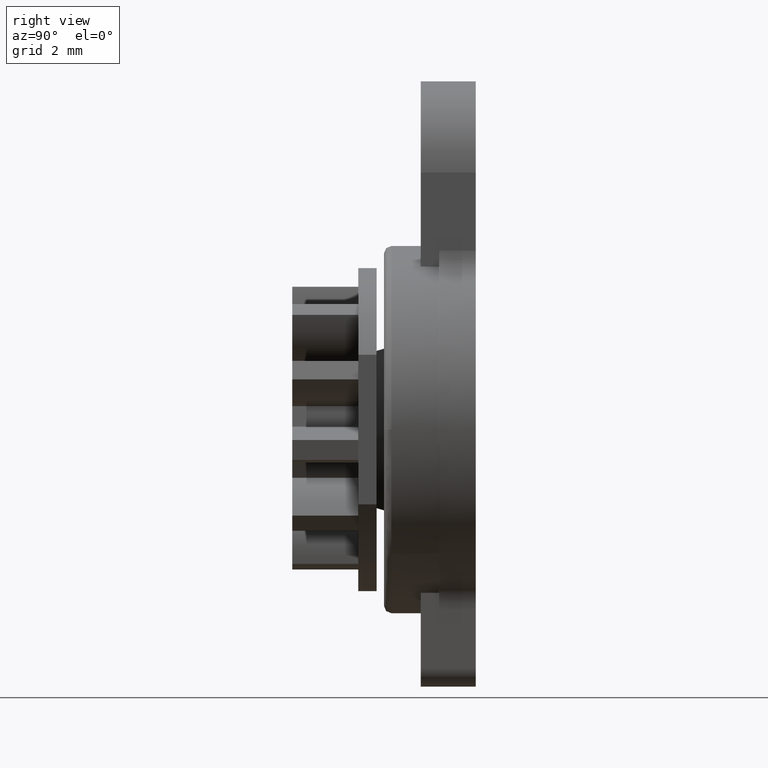
[diagram: clean part render]
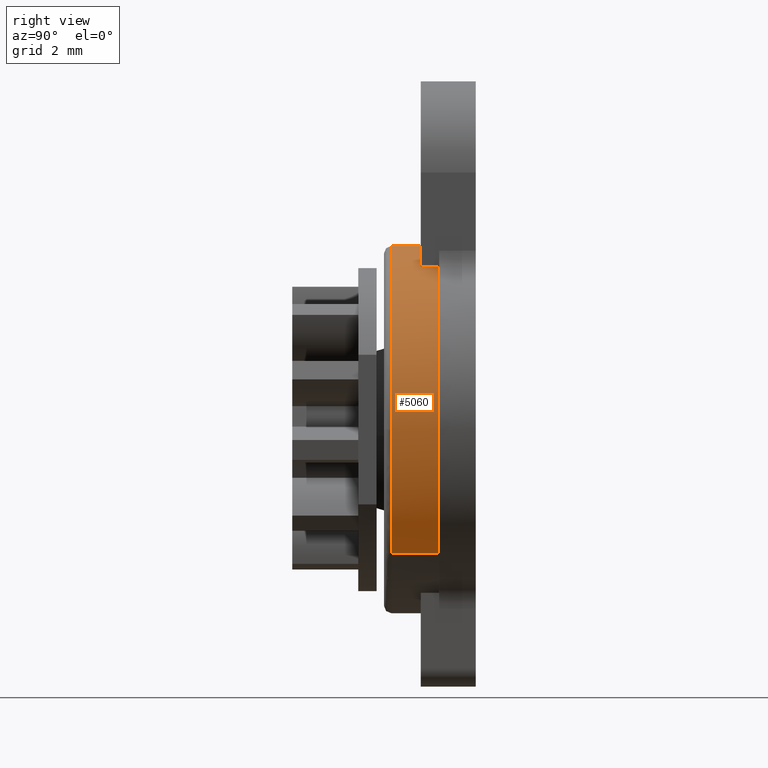
[diagram: same view with one face highlighted and labeled with its STEP entity id]
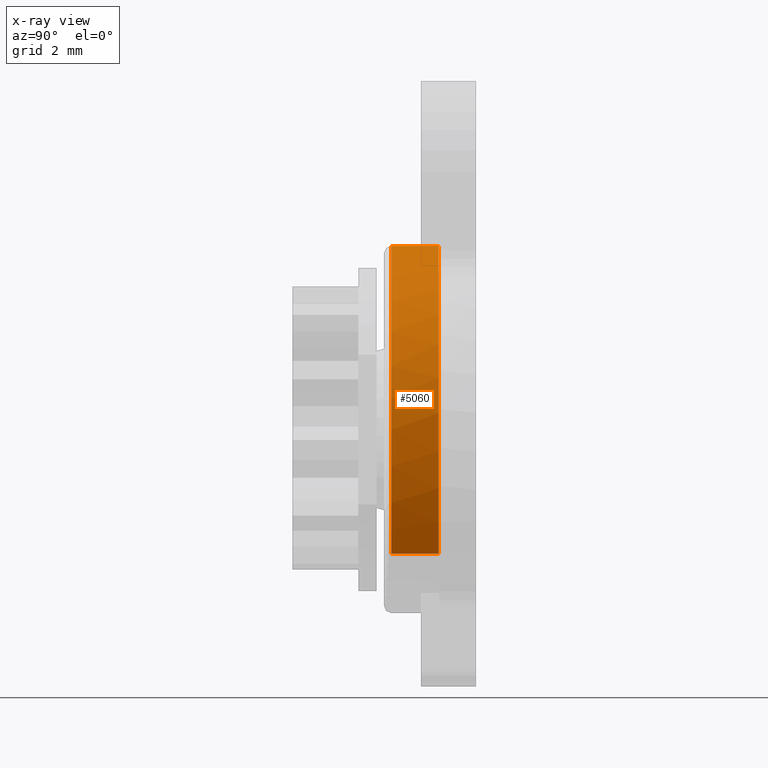
[diagram: x-ray of the same camera — body ghosted, the highlighted face saturated]
A machine part, right view. The second image highlights one B-rep face of the part: STEP entity #5060.
The next image is the same camera in x-ray: the body ghosted, the highlighted face saturated — about 0% of this face is hidden behind the body in this view.
In plain terms, the highlighted face is a freeform B-spline surface patch.
Its self-contained STEP definition (entity closure, byte-faithful):
#4840=CARTESIAN_POINT('',(3.686386932594568,-1.009999999999954,-3.377950766840128));
#4841=VERTEX_POINT('',#4840);
#4842=CARTESIAN_POINT('',(-7.105427E-015,-1.009999999999954,5.0));
#4843=VERTEX_POINT('',#4842);
#4844=CARTESIAN_POINT('',(3.686386932594568,-1.009999999999954,-3.377950766840129));
#4845=CARTESIAN_POINT('',(4.999999999999993,-1.009999999999954,-1.944393447501630));
#4846=CARTESIAN_POINT('',(4.999999999999993,-1.009999999999954,0.0));
#4847=CARTESIAN_POINT('',(4.999999999999993,-1.009999999999954,5.000000000000001));
#4848=CARTESIAN_POINT('',(-7.105427E-015,-1.009999999999954,5.0));
#4856=(BOUNDED_CURVE()B_SPLINE_CURVE(2,(#4844,#4845,#4846,#4847,#4848),.UNSPECIFIED.,.F.,.U.)B_SPLINE_CURVE_WITH_KNOTS((3,2,3),(0.631584802023326,0.750000000000000,1.0),.UNSPECIFIED.)CURVE()GEOMETRIC_REPRESENTATION_ITEM()RATIONAL_B_SPLINE_CURVE((0.853959782208976,0.861267966032719,1.0,0.707106781186548,1.0))REPRESENTATION_ITEM(''));
#4857=EDGE_CURVE('',#4841,#4843,#4856,.T.);
#4874=CARTESIAN_POINT('',(-3.686386932594583,-1.009999999999954,3.377950766840128));
#4875=VERTEX_POINT('',#4874);
#4891=CARTESIAN_POINT('',(-7.105427E-015,-1.009999999999954,5.0));
#4892=CARTESIAN_POINT('',(-2.200052874018602,-1.009999999999954,5.000000000000002));
#4893=CARTESIAN_POINT('',(-3.686386932594594,-1.009999999999954,3.377950766840138));
#4901=(BOUNDED_CURVE()B_SPLINE_CURVE(2,(#4891,#4892,#4893),.UNSPECIFIED.,.F.,.U.)B_SPLINE_CURVE_WITH_KNOTS((3,3),(0.0,0.131584802023326),.UNSPECIFIED.)CURVE()GEOMETRIC_REPRESENTATION_ITEM()RATIONAL_B_SPLINE_CURVE((1.0,0.845838815153829,0.853959782208976))REPRESENTATION_ITEM(''));
#4902=EDGE_CURVE('',#4843,#4875,#4901,.T.);
#4933=CARTESIAN_POINT('',(-3.686386764767198,-2.300000000086348,3.377950949991615));
#4934=VERTEX_POINT('',#4933);
#4948=CARTESIAN_POINT('',(-3.686386932594583,-1.009999999999954,3.377950766840128));
#4949=CARTESIAN_POINT('',(-3.686386764767198,-2.300000000086348,3.377950949991615));
#4950=QUASI_UNIFORM_CURVE('',1,(#4948,#4949),.UNSPECIFIED.,.F.,.U.);
#4951=EDGE_CURVE('',#4875,#4934,#4950,.T.);
#4955=CARTESIAN_POINT('',(3.686386764767185,-2.300000000086347,-3.377950949991615));
#4956=VERTEX_POINT('',#4955);
#4957=CARTESIAN_POINT('',(3.686386932594568,-1.009999999999954,-3.377950766840128));
#4958=CARTESIAN_POINT('',(3.686386764767185,-2.300000000086347,-3.377950949991615));
#4959=QUASI_UNIFORM_CURVE('',1,(#4957,#4958),.UNSPECIFIED.,.F.,.U.);
#4960=EDGE_CURVE('',#4841,#4956,#4959,.T.);
#4993=CARTESIAN_POINT('',(3.686386684050612,-0.977749999995886,-3.377951038078300));
#4994=CARTESIAN_POINT('',(7.064337722128912,-0.977749999995886,0.308435645972319));
#4995=CARTESIAN_POINT('',(3.377951038078293,-0.977749999995886,3.686386684050619));
#4996=CARTESIAN_POINT('',(-0.308435645972326,-0.977749999995886,7.064337722128919));
#4997=CARTESIAN_POINT('',(-3.686386684050626,-0.977749999995886,3.377951038078300));
#4998=CARTESIAN_POINT('',(3.686386684050612,-2.333056250166846,-3.377951038078300));
#4999=CARTESIAN_POINT('',(7.064337722128912,-2.333056250166847,0.308435645972319));
#5000=CARTESIAN_POINT('',(3.377951038078293,-2.333056250166846,3.686386684050619));
#5001=CARTESIAN_POINT('',(-0.308435645972326,-2.333056250166847,7.064337722128919));
#5002=CARTESIAN_POINT('',(-3.686386684050626,-2.333056250166846,3.377951038078300));
#5010=(BOUNDED_SURFACE()B_SPLINE_SURFACE(2,1,((#4993,#4998),(#4994,#4999),(#4995,#5000),(#4996,#5001),(#4997,#5002)),.UNSPECIFIED.,.F.,.F.,.U.)B_SPLINE_SURFACE_WITH_KNOTS((3,2,3),(2,2),(0.0,8.284271247461899,16.568542494923800),(0.0,1.0),.UNSPECIFIED.)GEOMETRIC_REPRESENTATION_ITEM()RATIONAL_B_SPLINE_SURFACE(((1.0,1.0),(0.707106781186548,0.707106781186548),(1.0,1.0),(0.707106781186548,0.707106781186548),(1.0,1.0)))REPRESENTATION_ITEM('')SURFACE());
#5011=CARTESIAN_POINT('',(-7.105427E-015,-2.299999999999970,4.999999999999999));
#5012=VERTEX_POINT('',#5011);
#5013=CARTESIAN_POINT('',(-3.686386764767200,-2.300000000086342,3.377950949991617));
#5014=CARTESIAN_POINT('',(-2.200052725762792,-2.300000000035767,4.999999999999999));
#5015=CARTESIAN_POINT('',(-7.105427E-015,-2.299999999999970,4.999999999999999));
#5023=(BOUNDED_CURVE()B_SPLINE_CURVE(2,(#5013,#5014,#5015),.UNSPECIFIED.,.F.,.U.)B_SPLINE_CURVE_WITH_KNOTS((3,3),(0.868415205476859,1.0),.UNSPECIFIED.)CURVE()GEOMETRIC_REPRESENTATION_ITEM()RATIONAL_B_SPLINE_CURVE((0.853959781283204,0.845838823940841,1.0))REPRESENTATION_ITEM(''));
#5024=EDGE_CURVE('',#4934,#5012,#5023,.T.);
#5025=ORIENTED_EDGE('',*,*,#5024,.T.);
#5026=CARTESIAN_POINT('',(4.999999999999992,-2.300000000162677,6.653662E-016));
#5027=VERTEX_POINT('',#5026);
#5028=CARTESIAN_POINT('',(-7.105427E-015,-2.299999999999970,4.999999999999999));
#5029=CARTESIAN_POINT('',(4.999999999999993,-2.300000000081324,4.999999999999998));
#5030=CARTESIAN_POINT('',(4.999999999999992,-2.300000000162677,6.653662E-016));
#5038=(BOUNDED_CURVE()B_SPLINE_CURVE(2,(#5028,#5029,#5030),.UNSPECIFIED.,.F.,.U.)B_SPLINE_CURVE_WITH_KNOTS((3,3),(0.0,0.250000000000000),.UNSPECIFIED.)CURVE()GEOMETRIC_REPRESENTATION_ITEM()RATIONAL_B_SPLINE_CURVE((1.0,0.707106781186548,1.0))REPRESENTATION_ITEM(''));
#5039=EDGE_CURVE('',#5012,#5027,#5038,.T.);
#5040=ORIENTED_EDGE('',*,*,#5039,.T.);
#5041=CARTESIAN_POINT('',(4.999999999999992,-2.300000000162676,6.653662E-016));
#5042=CARTESIAN_POINT('',(4.999999999999993,-2.300000000131039,-1.944393590493176));
#5043=CARTESIAN_POINT('',(3.686386764767186,-2.300000000086342,-3.377950949991617));
#5051=(BOUNDED_CURVE()B_SPLINE_CURVE(2,(#5041,#5042,#5043),.UNSPECIFIED.,.F.,.U.)B_SPLINE_CURVE_WITH_KNOTS((3,3),(0.250000000000000,0.368415205476859),.UNSPECIFIED.)CURVE()GEOMETRIC_REPRESENTATION_ITEM()RATIONAL_B_SPLINE_CURVE((1.000000000000000,0.861267957245706,0.853959781283204))REPRESENTATION_ITEM(''));
#5052=EDGE_CURVE('',#5027,#4956,#5051,.T.);
#5053=ORIENTED_EDGE('',*,*,#5052,.T.);
#5054=ORIENTED_EDGE('',*,*,#4960,.F.);
#5055=ORIENTED_EDGE('',*,*,#4857,.T.);
#5056=ORIENTED_EDGE('',*,*,#4902,.T.);
#5057=ORIENTED_EDGE('',*,*,#4951,.T.);
#5058=EDGE_LOOP('',(#5025,#5040,#5053,#5054,#5055,#5056,#5057));
#5059=FACE_OUTER_BOUND('',#5058,.T.);
#5060=ADVANCED_FACE('',(#5059),#5010,.T.);